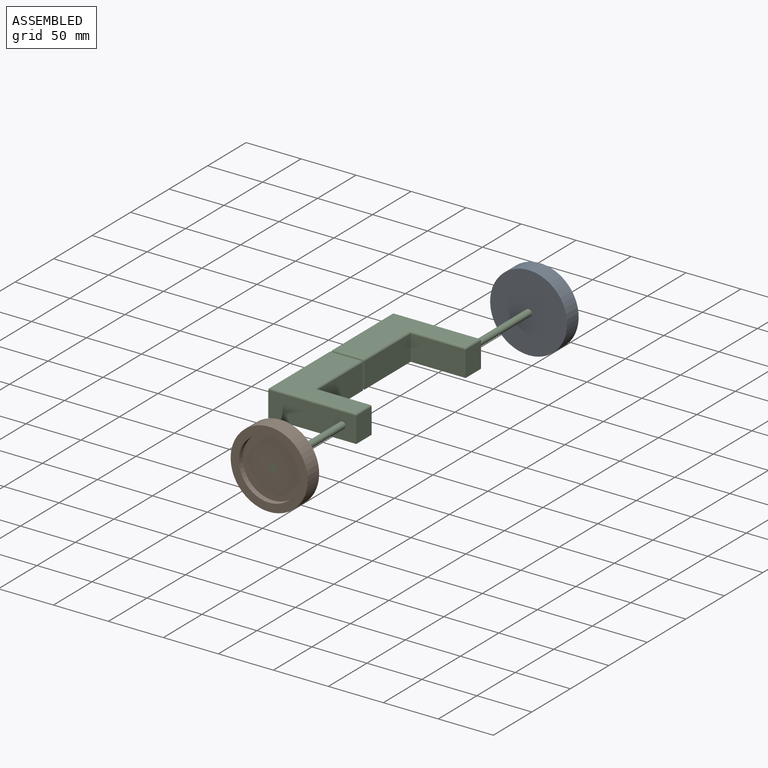
[diagram: assembled view]
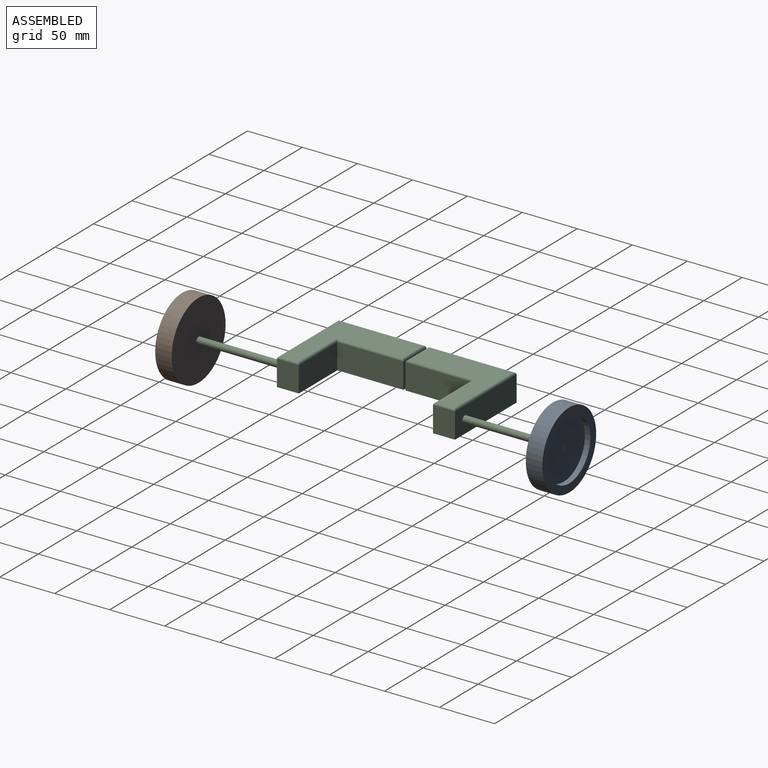
[diagram: assembled view, second angle]
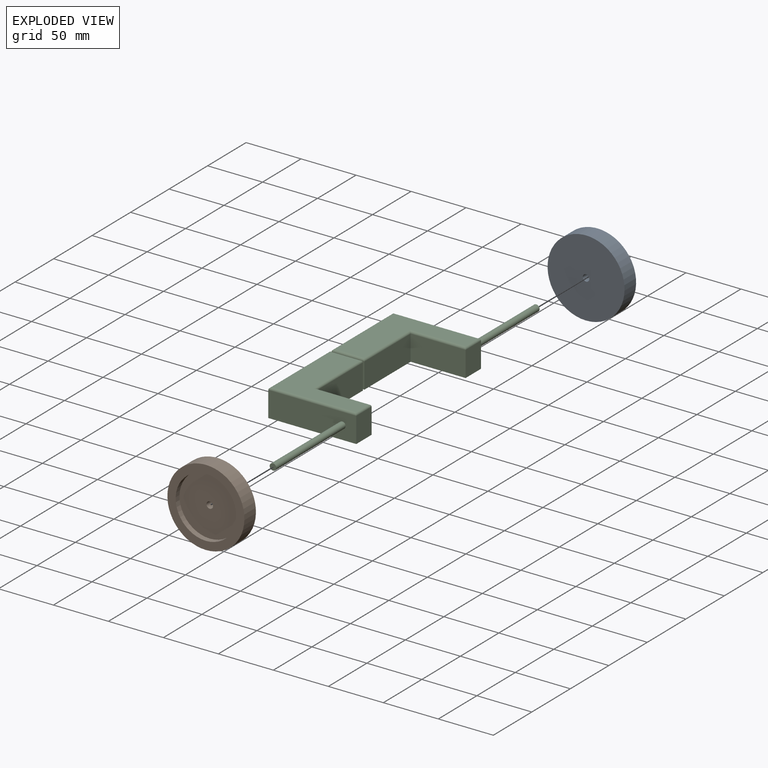
[diagram: exploded view]
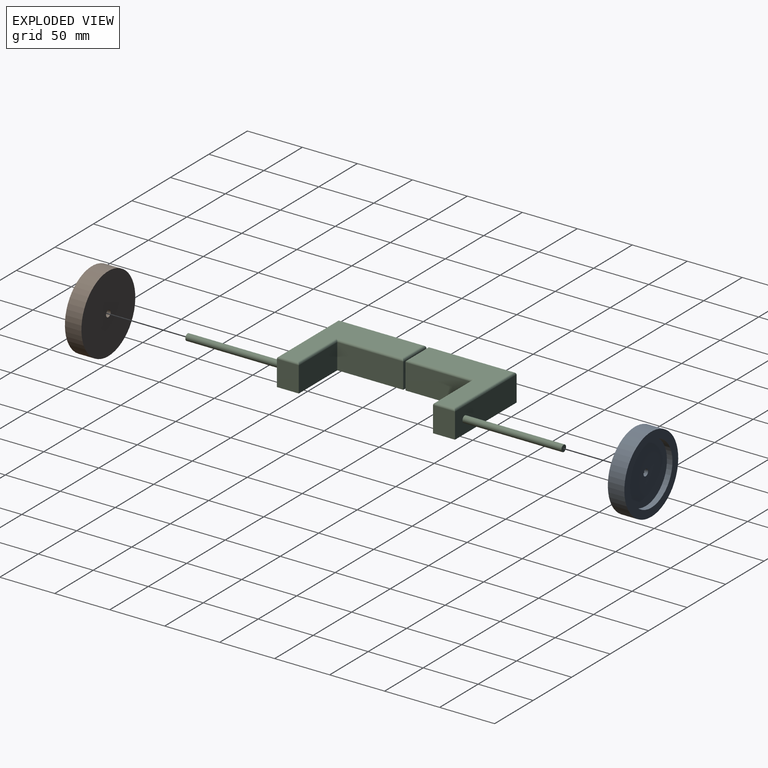
[diagram: exploded view, second angle]
ASSEMBLY  parts=3 mates=2
PART A: 6 faces, bbox 70x15x70 mm
  f0: cylinder r=3mm len=10mm, axis (0,1,0), area 188.5mm2, adj f3,f5
  f1: cylinder r=35mm len=70mm, axis (0,1,0), area 3298.7mm2, adj f2,f3
  f2: plane 70x70mm, normal (0,-1,0), area 1472.6mm2, adj f1,f4
  f3: plane 70x70mm, normal (0,1,0), area 3820.2mm2, adj f0,f1
  f4: cylinder r=27.5mm len=55mm, axis (0,-1,0), area 863.9mm2, adj f2,f5
  f5: plane 55x55mm, normal (0,-1,0), area 2347.6mm2, adj f0,f4
PART B: same geometry as A
PART C: 33 faces, bbox 80x342x25 mm
  f0: plane 60x23mm, normal (1,0,0), area 1380mm2, adj f3,f5,f6,f14
  f1: plane 76x76mm, normal (0,0,1), area 2776mm2, adj f10,f11,f12,f13,f14,f15
  f2: plane 80x23mm, normal (-1,0,0), area 1840mm2, adj f3,f4,f5,f10
  f3: plane 80x80mm, normal (0,0,-1), area 3400mm2, adj f0,f2,f4,f5,f6,f7
  f4: plane 80x23mm, normal (0,1,0), area 1811.7mm2, adj f2,f3,f7,f8,f11
  f5: plane 30x23mm, normal (0,-1,0), area 576.9mm2, adj f0,f2,f3,f12,f16
  f6: plane 50x23mm, normal (0,-1,0), area 1150mm2, adj f0,f3,f7,f15
  f7: plane 23x20mm, normal (1,0,0), area 460mm2, adj f3,f4,f6,f13
  f8: cylinder r=3mm len=90mm, axis (0,-1,0), area 1696.5mm2, adj f4,f9
  f9: plane 6x6mm, normal (0,1,0), area 28.3mm2, adj f8
  f10: cylinder r=2mm len=80mm, axis (0,1,0), area 246.8mm2, adj f1,f2,f11,f12
  f11: cylinder r=2mm len=80mm, axis (1,0,0), area 246.8mm2, adj f1,f4,f10,f13
  f12: cylinder r=2mm len=30mm, axis (-1,0,0), area 89.7mm2, adj f1,f5,f10,f14
  f13: cylinder r=2mm len=20mm, axis (0,1,0), area 58.3mm2, adj f1,f7,f11,f15
  f14: cylinder r=2mm len=62mm, axis (0,-1,0), area 188.5mm2, adj f0,f1,f12,f15
  f15: cylinder r=2mm len=52mm, axis (-1,0,0), area 157.1mm2, adj f1,f6,f13,f14
  f16: cylinder r=6mm len=12mm, axis (0,1,0), area 75.4mm2, adj f5,f22
  f17: plane 60x23mm, normal (1,0,0), area 1380mm2, adj f20,f22,f23,f31
  f18: plane 76x76mm, normal (0,0,1), area 2776mm2, adj f27,f28,f29,f30,f31,f32
  f19: plane 80x23mm, normal (-1,0,0), area 1840mm2, adj f20,f21,f22,f27
  f20: plane 80x80mm, normal (0,0,-1), area 3400mm2, adj f17,f19,f21,f22,f23,f24
  f21: plane 80x23mm, normal (0,-1,0), area 1811.7mm2, adj f19,f20,f24,f25,f28
  f22: plane 30x23mm, normal (0,1,0), area 576.9mm2, adj f16,f17,f19,f20,f29
  f23: plane 50x23mm, normal (0,1,0), area 1150mm2, adj f17,f20,f24,f32
  f24: plane 23x20mm, normal (1,0,0), area 460mm2, adj f20,f21,f23,f30
  f25: cylinder r=3mm len=90mm, axis (0,1,0), area 1696.5mm2, adj f21,f26
  f26: plane 6x6mm, normal (0,-1,0), area 28.3mm2, adj f25
  f27: cylinder r=2mm len=80mm, axis (0,-1,0), area 246.8mm2, adj f18,f19,f28,f29
  f28: cylinder r=2mm len=80mm, axis (1,0,0), area 246.8mm2, adj f18,f21,f27,f30
  f29: cylinder r=2mm len=30mm, axis (-1,0,0), area 89.7mm2, adj f18,f22,f27,f31
  f30: cylinder r=2mm len=20mm, axis (0,-1,0), area 58.3mm2, adj f18,f24,f28,f32
  f31: cylinder r=2mm len=62mm, axis (0,1,0), area 188.5mm2, adj f17,f18,f29,f32
  f32: cylinder r=2mm len=52mm, axis (-1,0,0), area 157.1mm2, adj f18,f23,f30,f31
PLACE A rot(axis=(0,0,-1),180deg) t=(144.32,703.83,102.95)mm
PLACE B t=(144.32,381.83,102.95)mm
PLACE C t=(74.02,583.83,99.94)mm
MATE revolute C.f8 <-> A.f4  axis (0,1,0) through (144.32,713.83,102.95)mm
MATE revolute C.f8 <-> B.f4  axis (0,-1,0) through (144.32,371.83,102.95)mm
